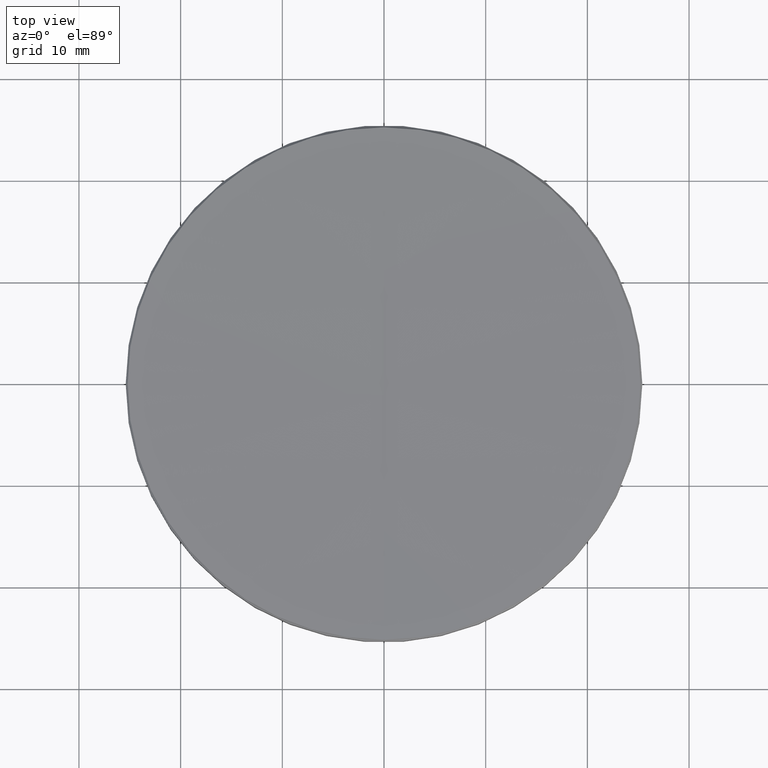
[diagram: clean part render]
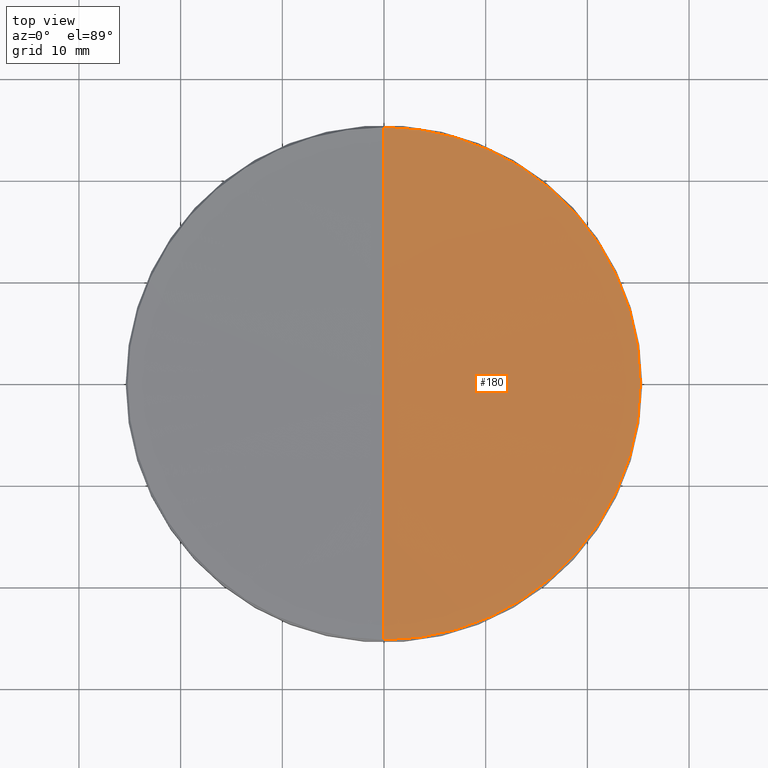
[diagram: same view with one face highlighted and labeled with its STEP entity id]
A machine part, top view. The second image highlights one B-rep face of the part: STEP entity #180.
In plain terms, the highlighted spherical surface has radius 1580.24 mm.
Its self-contained STEP definition (entity closure, byte-faithful):
#5 = EDGE_CURVE ( 'NONE', #118, #88, #39, .T. ) ;
#10 = ORIENTED_EDGE ( 'NONE', *, *, #327, .T. ) ;
#18 = AXIS2_PLACEMENT_3D ( 'NONE', #20, #99, #174 ) ;
#20 = CARTESIAN_POINT ( 'NONE',  ( 0.000000000000000000, 0.000000000000000000, 1597.335853264096386 ) ) ;
#25 = AXIS2_PLACEMENT_3D ( 'NONE', #36, #50, #227 ) ;
#29 = AXIS2_PLACEMENT_3D ( 'NONE', #98, #125, #175 ) ;
#36 = CARTESIAN_POINT ( 'NONE',  ( 0.000000000000000000, 0.000000000000000000, 1597.335853264096386 ) ) ;
#39 = CIRCLE ( 'NONE', #25, 1580.240000000000236 ) ;
#42 = EDGE_CURVE ( 'NONE', #88, #240, #316, .T. ) ;
#50 = DIRECTION ( 'NONE',  ( -1.000000000000000000, 1.224646799147353207E-16, 0.000000000000000000 ) ) ;
#51 = FACE_OUTER_BOUND ( 'NONE', #148, .T. ) ;
#59 = DIRECTION ( 'NONE',  ( -1.000000000000000000, 0.000000000000000000, 0.000000000000000000 ) ) ;
#66 = AXIS2_PLACEMENT_3D ( 'NONE', #85, #59, #254 ) ;
#83 = CIRCLE ( 'NONE', #226, 25.20315217857431023 ) ;
#85 = CARTESIAN_POINT ( 'NONE',  ( 0.000000000000000000, 0.000000000000000000, 1597.335853264096386 ) ) ;
#88 = VERTEX_POINT ( 'NONE', #171 ) ;
#98 = CARTESIAN_POINT ( 'NONE',  ( 0.000000000000000000, 0.000000000000000000, 17.29684782142548727 ) ) ;
#99 = DIRECTION ( 'NONE',  ( 1.000000000000000000, 0.000000000000000000, 0.000000000000000000 ) ) ;
#115 = EDGE_CURVE ( 'NONE', #118, #143, #144, .T. ) ;
#118 = VERTEX_POINT ( 'NONE', #200 ) ;
#125 = DIRECTION ( 'NONE',  ( -0.000000000000000000, -0.000000000000000000, 1.000000000000000000 ) ) ;
#143 = VERTEX_POINT ( 'NONE', #159 ) ;
#144 = CIRCLE ( 'NONE', #18, 1580.240000000000236 ) ;
#148 = EDGE_LOOP ( 'NONE', ( #165, #315, #167, #10 ) ) ;
#159 = CARTESIAN_POINT ( 'NONE',  ( 0.000000000000000000, 25.20315217857234202, 17.29684782142537713 ) ) ;
#165 = ORIENTED_EDGE ( 'NONE', *, *, #115, .F. ) ;
#167 = ORIENTED_EDGE ( 'NONE', *, *, #42, .T. ) ;
#171 = CARTESIAN_POINT ( 'NONE',  ( -3.086495964391225684E-15, -25.20315217857234202, 17.29684782142537713 ) ) ;
#174 = DIRECTION ( 'NONE',  ( 0.000000000000000000, 0.000000000000000000, -1.000000000000000000 ) ) ;
#175 = DIRECTION ( 'NONE',  ( 1.000000000000000000, 0.000000000000000000, 0.000000000000000000 ) ) ;
#180 = ADVANCED_FACE ( 'NONE', ( #51 ), #312, .F. ) ;
#200 = CARTESIAN_POINT ( 'NONE',  ( 0.000000000000000000, 9.676179289423068622E-14, 17.09585326409612804 ) ) ;
#203 = CARTESIAN_POINT ( 'NONE',  ( 25.20315217857431023, 3.098549417112872365E-15, 17.29684782142548727 ) ) ;
#226 = AXIS2_PLACEMENT_3D ( 'NONE', #258, #313, #291 ) ;
#227 = DIRECTION ( 'NONE',  ( -1.224646799147353207E-16, -1.000000000000000000, 0.000000000000000000 ) ) ;
#240 = VERTEX_POINT ( 'NONE', #203 ) ;
#254 = DIRECTION ( 'NONE',  ( 0.000000000000000000, 1.000000000000000000, 0.000000000000000000 ) ) ;
#258 = CARTESIAN_POINT ( 'NONE',  ( 0.000000000000000000, 0.000000000000000000, 17.29684782142548727 ) ) ;
#291 = DIRECTION ( 'NONE',  ( 1.000000000000000000, 0.000000000000000000, 0.000000000000000000 ) ) ;
#312 = SPHERICAL_SURFACE ( 'NONE', #66, 1580.240000000000236 ) ;
#313 = DIRECTION ( 'NONE',  ( -0.000000000000000000, -0.000000000000000000, 1.000000000000000000 ) ) ;
#315 = ORIENTED_EDGE ( 'NONE', *, *, #5, .T. ) ;
#316 = CIRCLE ( 'NONE', #29, 25.20315217857431023 ) ;
#327 = EDGE_CURVE ( 'NONE', #240, #143, #83, .T. ) ;